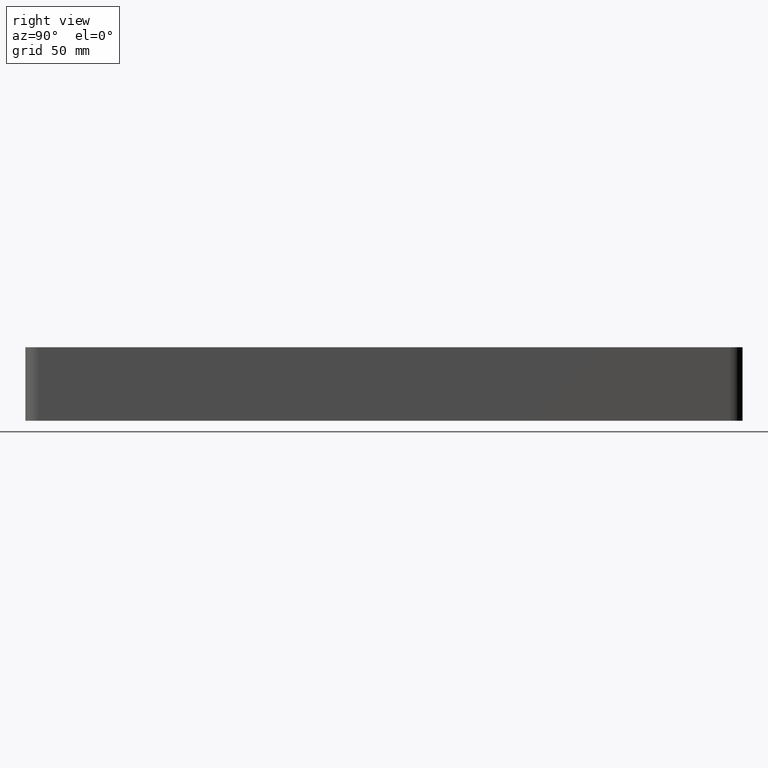
[diagram: clean part render]
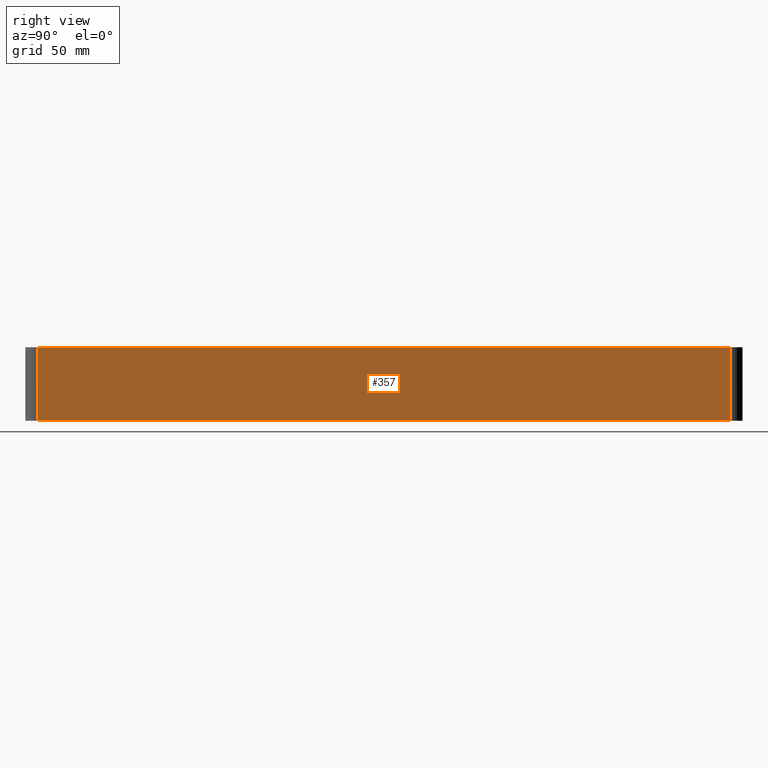
[diagram: same view with one face highlighted and labeled with its STEP entity id]
A machine part, right view. The second image highlights one B-rep face of the part: STEP entity #357.
In plain terms, the highlighted planar face has unit normal (1, 0, 0).
Its self-contained STEP definition (entity closure, byte-faithful):
#47=FACE_OUTER_BOUND('',#67,.T.);
#67=EDGE_LOOP('',(#307,#308,#309,#310));
#96=LINE('',#556,#136);
#100=LINE('',#565,#140);
#109=LINE('',#593,#149);
#110=LINE('',#596,#150);
#136=VECTOR('',#454,10.);
#140=VECTOR('',#462,10.);
#149=VECTOR('',#491,10.);
#150=VECTOR('',#496,10.);
#167=VERTEX_POINT('',#549);
#170=VERTEX_POINT('',#554);
#173=VERTEX_POINT('',#564);
#182=VERTEX_POINT('',#592);
#210=EDGE_CURVE('',#170,#167,#96,.T.);
#214=EDGE_CURVE('',#167,#173,#100,.T.);
#228=EDGE_CURVE('',#173,#182,#109,.T.);
#230=EDGE_CURVE('',#182,#170,#110,.T.);
#307=ORIENTED_EDGE('',*,*,#210,.F.);
#308=ORIENTED_EDGE('',*,*,#230,.F.);
#309=ORIENTED_EDGE('',*,*,#228,.F.);
#310=ORIENTED_EDGE('',*,*,#214,.F.);
#339=PLANE('',#403);
#357=ADVANCED_FACE('',(#47),#339,.T.);
#403=AXIS2_PLACEMENT_3D('',#595,#494,#495);
#454=DIRECTION('',(0.,0.,-1.));
#462=DIRECTION('',(0.,-1.,0.));
#491=DIRECTION('',(0.,0.,1.));
#494=DIRECTION('center_axis',(1.,0.,0.));
#495=DIRECTION('ref_axis',(0.,-1.,0.));
#496=DIRECTION('',(0.,1.,0.));
#549=CARTESIAN_POINT('',(50.2499999999998,282.999999999999,-60.));
#554=CARTESIAN_POINT('',(50.2499999999998,282.999999999999,0.));
#556=CARTESIAN_POINT('',(50.2499999999998,282.999999999999,0.));
#564=CARTESIAN_POINT('',(50.2499999999998,-283.000000000001,-60.));
#565=CARTESIAN_POINT('',(50.2499999999998,-293.000000000001,-60.));
#592=CARTESIAN_POINT('',(50.2499999999998,-283.000000000001,0.));
#593=CARTESIAN_POINT('',(50.2499999999998,-283.000000000001,0.));
#595=CARTESIAN_POINT('Origin',(50.2499999999998,292.999999999999,0.));
#596=CARTESIAN_POINT('',(50.2499999999998,-293.000000000001,0.));